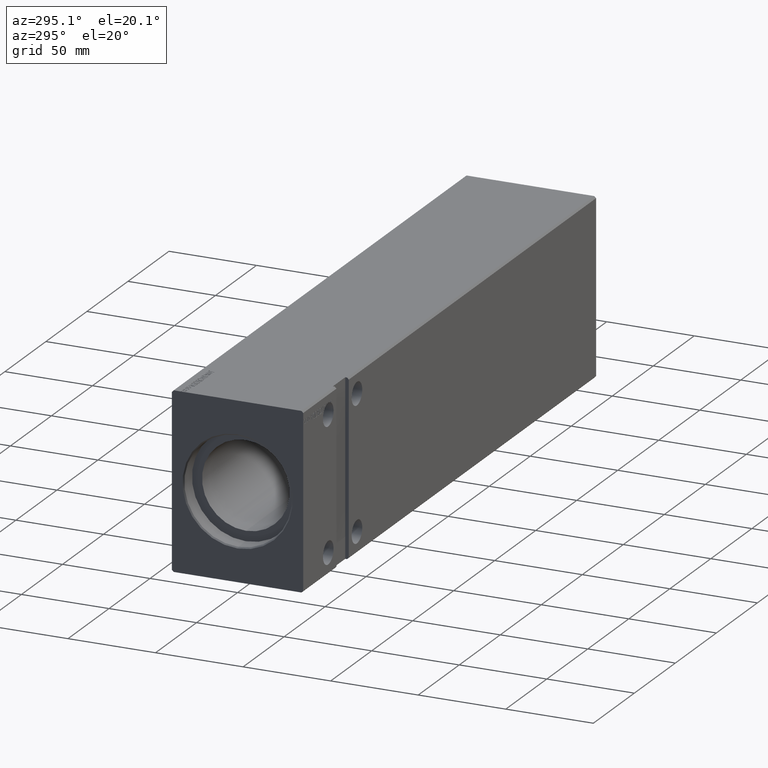
[diagram: clean part render]
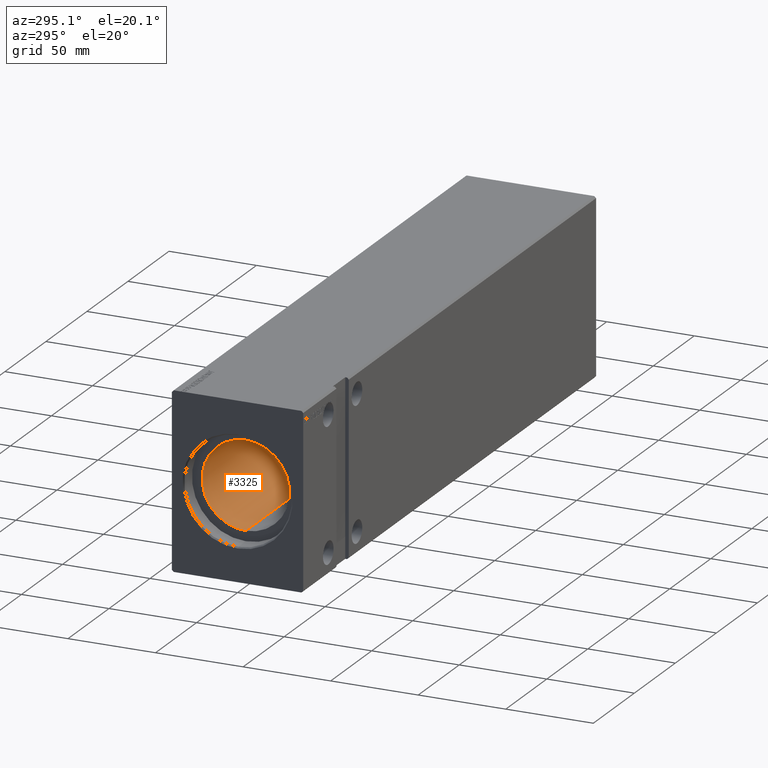
[diagram: same view with one face highlighted and labeled with its STEP entity id]
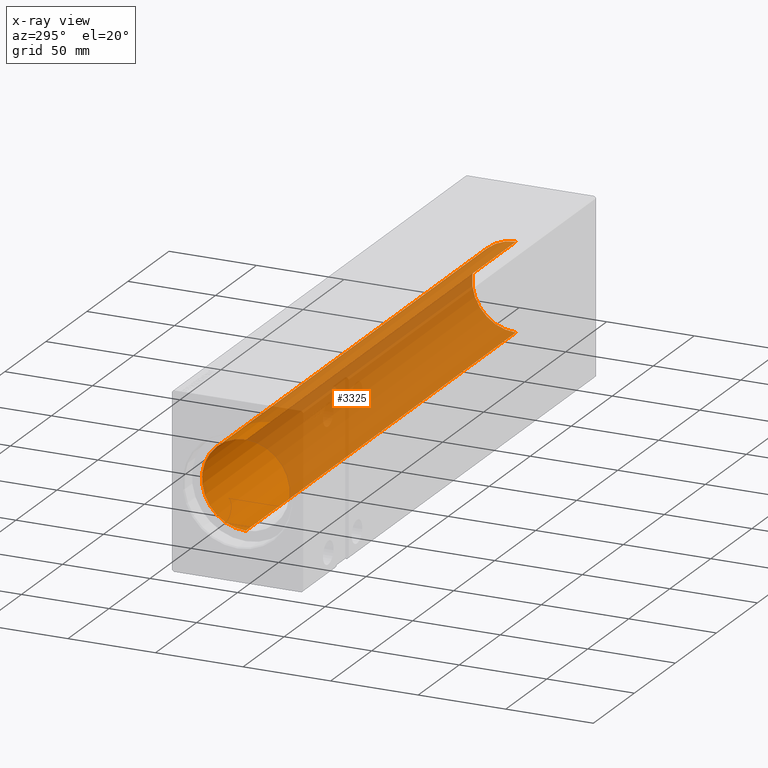
[diagram: x-ray of the same camera — body ghosted, the highlighted face saturated]
A machine part, auxiliary view. The second image highlights one B-rep face of the part: STEP entity #3325.
The next image is the same camera in x-ray: the body ghosted, the highlighted face saturated — about 79% of this face is hidden behind the body in this view.
In plain terms, the highlighted cylindrical surface (partial cylindrical patch) has radius 25 mm, axis along (-1, -0, -0).
Its self-contained STEP definition (entity closure, byte-faithful):
#1019 = EDGE_CURVE ( 'NONE', #11513, #35179, #5130, .T. ) ;
#2628 = CARTESIAN_POINT ( 'NONE',  ( 10.00000000000000888, 3.061616997868383043E-15, -25.00000000000000000 ) ) ;
#2673 = DIRECTION ( 'NONE',  ( 0.000000000000000000, 0.000000000000000000, 1.000000000000000000 ) ) ;
#3325 = ADVANCED_FACE ( 'NONE', ( #36796 ), #27265, .F. ) ;
#3922 = CIRCLE ( 'NONE', #37661, 25.00000000000000000 ) ;
#5130 = LINE ( 'NONE', #27106, #29651 ) ;
#8421 = CARTESIAN_POINT ( 'NONE',  ( 339.1999999999999886, 3.061616997868383043E-15, -25.00000000000000000 ) ) ;
#8675 = VERTEX_POINT ( 'NONE', #2628 ) ;
#9673 = ORIENTED_EDGE ( 'NONE', *, *, #32805, .F. ) ;
#10195 = EDGE_CURVE ( 'NONE', #35179, #8675, #20687, .T. ) ;
#11513 = VERTEX_POINT ( 'NONE', #26839 ) ;
#13336 = VECTOR ( 'NONE', #17964, 1000.000000000000000 ) ;
#13756 = ORIENTED_EDGE ( 'NONE', *, *, #10195, .T. ) ;
#16766 = ORIENTED_EDGE ( 'NONE', *, *, #1019, .T. ) ;
#17775 = DIRECTION ( 'NONE',  ( -1.000000000000000000, -0.000000000000000000, -0.000000000000000000 ) ) ;
#17964 = DIRECTION ( 'NONE',  ( -1.000000000000000000, -0.000000000000000000, -0.000000000000000000 ) ) ;
#18624 = CARTESIAN_POINT ( 'NONE',  ( 10.00000000000000888, 0.000000000000000000, 0.000000000000000000 ) ) ;
#18864 = CARTESIAN_POINT ( 'NONE',  ( 10.00000000000000888, 0.000000000000000000, 25.00000000000000000 ) ) ;
#20273 = EDGE_LOOP ( 'NONE', ( #9673, #25855, #16766, #13756 ) ) ;
#20687 = CIRCLE ( 'NONE', #25997, 25.00000000000000000 ) ;
#21244 = DIRECTION ( 'NONE',  ( 0.000000000000000000, 0.000000000000000000, 1.000000000000000000 ) ) ;
#22236 = DIRECTION ( 'NONE',  ( 0.000000000000000000, 0.000000000000000000, 1.000000000000000000 ) ) ;
#22493 = EDGE_CURVE ( 'NONE', #11513, #30330, #3922, .T. ) ;
#24586 = LINE ( 'NONE', #27697, #13336 ) ;
#25351 = CARTESIAN_POINT ( 'NONE',  ( 339.1999999999999886, 0.000000000000000000, 0.000000000000000000 ) ) ;
#25855 = ORIENTED_EDGE ( 'NONE', *, *, #22493, .F. ) ;
#25997 = AXIS2_PLACEMENT_3D ( 'NONE', #18624, #37682, #2673 ) ;
#26839 = CARTESIAN_POINT ( 'NONE',  ( 339.1999999999999886, 0.000000000000000000, 25.00000000000000000 ) ) ;
#27106 = CARTESIAN_POINT ( 'NONE',  ( 339.1999999999999886, 0.000000000000000000, 25.00000000000000000 ) ) ;
#27265 = CYLINDRICAL_SURFACE ( 'NONE', #29054, 25.00000000000000000 ) ;
#27468 = CARTESIAN_POINT ( 'NONE',  ( 339.1999999999999886, 0.000000000000000000, 0.000000000000000000 ) ) ;
#27697 = CARTESIAN_POINT ( 'NONE',  ( 339.1999999999999886, 3.061616997868383043E-15, -25.00000000000000000 ) ) ;
#29054 = AXIS2_PLACEMENT_3D ( 'NONE', #27468, #39695, #21244 ) ;
#29651 = VECTOR ( 'NONE', #17775, 1000.000000000000000 ) ;
#30330 = VERTEX_POINT ( 'NONE', #8421 ) ;
#32805 = EDGE_CURVE ( 'NONE', #30330, #8675, #24586, .T. ) ;
#35179 = VERTEX_POINT ( 'NONE', #18864 ) ;
#36796 = FACE_OUTER_BOUND ( 'NONE', #20273, .T. ) ;
#37570 = DIRECTION ( 'NONE',  ( -1.000000000000000000, 0.000000000000000000, 0.000000000000000000 ) ) ;
#37661 = AXIS2_PLACEMENT_3D ( 'NONE', #25351, #37570, #22236 ) ;
#37682 = DIRECTION ( 'NONE',  ( -1.000000000000000000, 0.000000000000000000, 0.000000000000000000 ) ) ;
#39695 = DIRECTION ( 'NONE',  ( -1.000000000000000000, -0.000000000000000000, -0.000000000000000000 ) ) ;